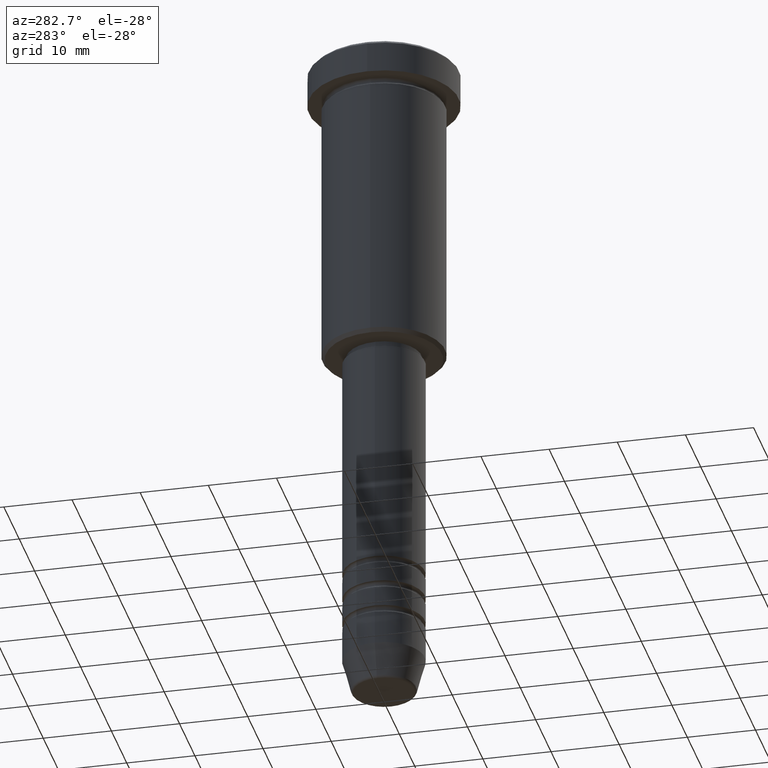
[diagram: clean part render]
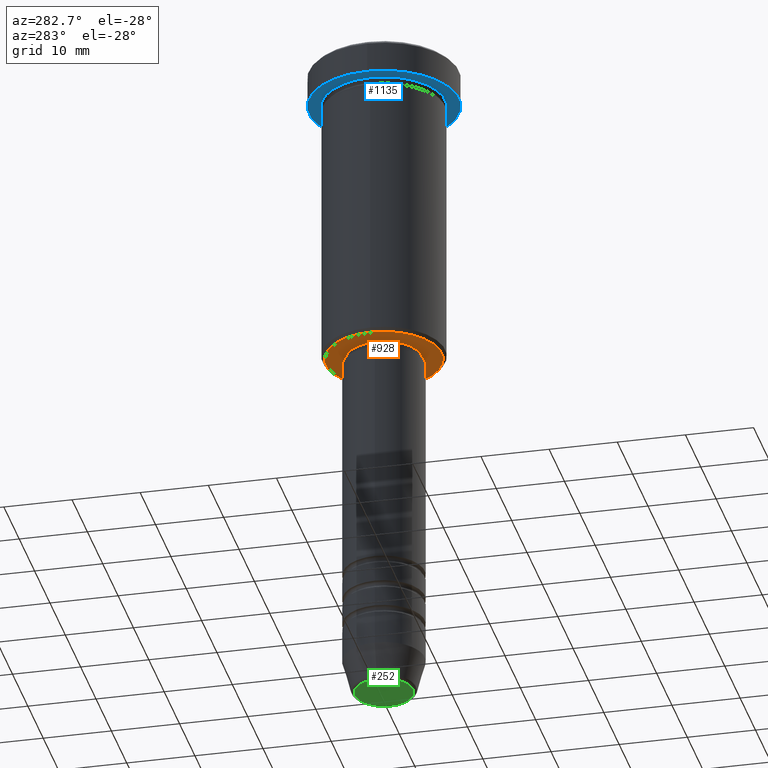
[diagram: same view with three faces highlighted in distinct colors, each labeled with its STEP entity id]
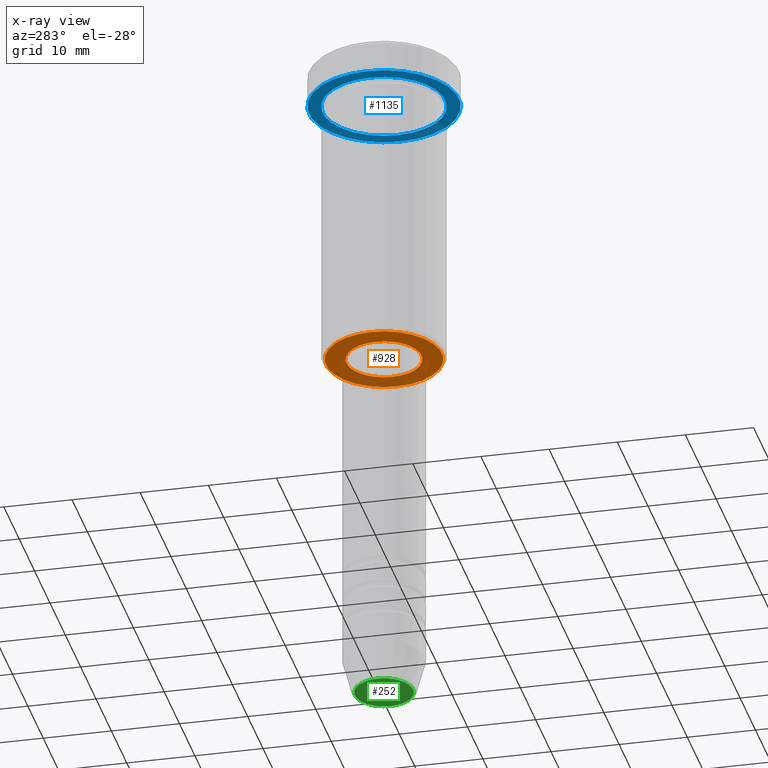
[diagram: x-ray of the same camera — body ghosted, the three highlighted faces saturated]
A machine part, auxiliary view with three faces highlighted in distinct colors.
The next image is the same camera in x-ray (body ghosted, the three faces saturated) — at least one of them is partly hidden behind the body in this view.
Their STEP definitions:

[orange] entity #928 — the highlighted planar face has unit normal (0, 0, -1).
#40 = EDGE_CURVE ( 'NONE', #103, #138, #1019, .T. ) ;
#58 = CIRCLE ( 'NONE', #481, 8.500000000000007105 ) ;
#100 = CARTESIAN_POINT ( 'NONE',  ( 5.499999999999999112, 0.000000000000000000, -46.00000000000000000 ) ) ;
#103 = VERTEX_POINT ( 'NONE', #989 ) ;
#136 = DIRECTION ( 'NONE',  ( 1.000000000000000000, 0.000000000000000000, 0.000000000000000000 ) ) ;
#137 = AXIS2_PLACEMENT_3D ( 'NONE', #341, #971, #878 ) ;
#138 = VERTEX_POINT ( 'NONE', #277 ) ;
#232 = DIRECTION ( 'NONE',  ( 1.000000000000000000, 0.000000000000000000, 0.000000000000000000 ) ) ;
#242 = DIRECTION ( 'NONE',  ( -0.000000000000000000, -0.000000000000000000, 1.000000000000000000 ) ) ;
#277 = CARTESIAN_POINT ( 'NONE',  ( 8.500000000000007105, 0.000000000000000000, -46.00000000000000000 ) ) ;
#279 = ORIENTED_EDGE ( 'NONE', *, *, #862, .T. ) ;
#312 = DIRECTION ( 'NONE',  ( 0.000000000000000000, 0.000000000000000000, -1.000000000000000000 ) ) ;
#341 = CARTESIAN_POINT ( 'NONE',  ( 0.000000000000000000, 0.000000000000000000, -46.00000000000000000 ) ) ;
#357 = FACE_OUTER_BOUND ( 'NONE', #905, .T. ) ;
#384 = VERTEX_POINT ( 'NONE', #100 ) ;
#413 = ORIENTED_EDGE ( 'NONE', *, *, #1106, .T. ) ;
#455 = DIRECTION ( 'NONE',  ( -1.000000000000000000, 0.000000000000000000, -0.000000000000000000 ) ) ;
#459 = AXIS2_PLACEMENT_3D ( 'NONE', #1058, #519, #232 ) ;
#465 = DIRECTION ( 'NONE',  ( 0.000000000000000000, 0.000000000000000000, -1.000000000000000000 ) ) ;
#481 = AXIS2_PLACEMENT_3D ( 'NONE', #487, #312, #575 ) ;
#487 = CARTESIAN_POINT ( 'NONE',  ( 0.000000000000000000, 0.000000000000000000, -46.00000000000000000 ) ) ;
#519 = DIRECTION ( 'NONE',  ( -0.000000000000000000, -0.000000000000000000, 1.000000000000000000 ) ) ;
#531 = CARTESIAN_POINT ( 'NONE',  ( 0.000000000000000000, 9.000000000000000000, -46.00000000000000000 ) ) ;
#575 = DIRECTION ( 'NONE',  ( -1.000000000000000000, 0.000000000000000000, 0.000000000000000000 ) ) ;
#688 = VERTEX_POINT ( 'NONE', #1123 ) ;
#811 = AXIS2_PLACEMENT_3D ( 'NONE', #531, #465, #455 ) ;
#828 = EDGE_CURVE ( 'NONE', #384, #688, #1139, .T. ) ;
#862 = EDGE_CURVE ( 'NONE', #688, #384, #911, .T. ) ;
#869 = AXIS2_PLACEMENT_3D ( 'NONE', #1062, #242, #136 ) ;
#878 = DIRECTION ( 'NONE',  ( -1.000000000000000000, 0.000000000000000000, 0.000000000000000000 ) ) ;
#892 = PLANE ( 'NONE',  #811 ) ;
#898 = FACE_BOUND ( 'NONE', #1063, .T. ) ;
#905 = EDGE_LOOP ( 'NONE', ( #413, #1082 ) ) ;
#911 = CIRCLE ( 'NONE', #869, 5.499999999999999112 ) ;
#928 = ADVANCED_FACE ( 'NONE', ( #357, #898 ), #892, .T. ) ;
#971 = DIRECTION ( 'NONE',  ( 0.000000000000000000, 0.000000000000000000, -1.000000000000000000 ) ) ;
#989 = CARTESIAN_POINT ( 'NONE',  ( -8.500000000000007105, 1.071565949253934321E-15, -46.00000000000000000 ) ) ;
#997 = ORIENTED_EDGE ( 'NONE', *, *, #828, .T. ) ;
#1019 = CIRCLE ( 'NONE', #137, 8.500000000000007105 ) ;
#1058 = CARTESIAN_POINT ( 'NONE',  ( 0.000000000000000000, 0.000000000000000000, -46.00000000000000000 ) ) ;
#1062 = CARTESIAN_POINT ( 'NONE',  ( 0.000000000000000000, 0.000000000000000000, -46.00000000000000000 ) ) ;
#1063 = EDGE_LOOP ( 'NONE', ( #997, #279 ) ) ;
#1082 = ORIENTED_EDGE ( 'NONE', *, *, #40, .T. ) ;
#1106 = EDGE_CURVE ( 'NONE', #138, #103, #58, .T. ) ;
#1123 = CARTESIAN_POINT ( 'NONE',  ( -5.499999999999999112, 6.735557395310441037E-16, -46.00000000000000000 ) ) ;
#1139 = CIRCLE ( 'NONE', #459, 5.499999999999999112 ) ;

[blue] entity #1135 — the highlighted planar face has unit normal (0, 0, -1).
#67 = CARTESIAN_POINT ( 'NONE',  ( -9.000000000000000000, 0.000000000000000000, -4.999999999999999112 ) ) ;
#74 = VERTEX_POINT ( 'NONE', #67 ) ;
#110 = AXIS2_PLACEMENT_3D ( 'NONE', #582, #314, #767 ) ;
#153 = DIRECTION ( 'NONE',  ( -0.000000000000000000, -0.000000000000000000, 1.000000000000000000 ) ) ;
#154 = VERTEX_POINT ( 'NONE', #191 ) ;
#191 = CARTESIAN_POINT ( 'NONE',  ( -11.00000000000000000, 1.347111479062088602E-15, -5.000000000000000000 ) ) ;
#204 = CARTESIAN_POINT ( 'NONE',  ( 0.000000000000000000, 11.00000000000000000, -5.000000000000000000 ) ) ;
#218 = PLANE ( 'NONE',  #951 ) ;
#231 = EDGE_LOOP ( 'NONE', ( #855, #578 ) ) ;
#285 = ORIENTED_EDGE ( 'NONE', *, *, #625, .T. ) ;
#314 = DIRECTION ( 'NONE',  ( -0.000000000000000000, -0.000000000000000000, 1.000000000000000000 ) ) ;
#338 = DIRECTION ( 'NONE',  ( 1.000000000000000000, 0.000000000000000000, 0.000000000000000000 ) ) ;
#392 = CIRCLE ( 'NONE', #1143, 11.00000000000000000 ) ;
#397 = DIRECTION ( 'NONE',  ( 0.000000000000000000, 0.000000000000000000, -1.000000000000000000 ) ) ;
#449 = EDGE_CURVE ( 'NONE', #1043, #154, #392, .T. ) ;
#479 = AXIS2_PLACEMENT_3D ( 'NONE', #771, #153, #605 ) ;
#511 = CIRCLE ( 'NONE', #1179, 9.000000000000000000 ) ;
#578 = ORIENTED_EDGE ( 'NONE', *, *, #783, .F. ) ;
#582 = CARTESIAN_POINT ( 'NONE',  ( 0.000000000000000000, 0.000000000000000000, -5.000000000000000000 ) ) ;
#605 = DIRECTION ( 'NONE',  ( 1.000000000000000000, 0.000000000000000000, 0.000000000000000000 ) ) ;
#625 = EDGE_CURVE ( 'NONE', #74, #899, #511, .T. ) ;
#693 = EDGE_LOOP ( 'NONE', ( #285, #770 ) ) ;
#699 = DIRECTION ( 'NONE',  ( -0.000000000000000000, -0.000000000000000000, 1.000000000000000000 ) ) ;
#715 = EDGE_CURVE ( 'NONE', #899, #74, #909, .T. ) ;
#750 = DIRECTION ( 'NONE',  ( -1.000000000000000000, 0.000000000000000000, 0.000000000000000000 ) ) ;
#767 = DIRECTION ( 'NONE',  ( -1.000000000000000000, 0.000000000000000000, 0.000000000000000000 ) ) ;
#770 = ORIENTED_EDGE ( 'NONE', *, *, #715, .T. ) ;
#771 = CARTESIAN_POINT ( 'NONE',  ( 0.000000000000000000, 0.000000000000000000, -5.000000000000000000 ) ) ;
#783 = EDGE_CURVE ( 'NONE', #154, #1043, #987, .T. ) ;
#785 = CARTESIAN_POINT ( 'NONE',  ( 0.000000000000000000, 0.000000000000000000, -5.000000000000000000 ) ) ;
#822 = DIRECTION ( 'NONE',  ( -0.000000000000000000, -0.000000000000000000, 1.000000000000000000 ) ) ;
#841 = DIRECTION ( 'NONE',  ( -1.000000000000000000, 0.000000000000000000, -0.000000000000000000 ) ) ;
#855 = ORIENTED_EDGE ( 'NONE', *, *, #449, .F. ) ;
#899 = VERTEX_POINT ( 'NONE', #1004 ) ;
#909 = CIRCLE ( 'NONE', #110, 9.000000000000000000 ) ;
#947 = CARTESIAN_POINT ( 'NONE',  ( 0.000000000000000000, 0.000000000000000000, -5.000000000000000000 ) ) ;
#951 = AXIS2_PLACEMENT_3D ( 'NONE', #204, #397, #841 ) ;
#987 = CIRCLE ( 'NONE', #479, 11.00000000000000000 ) ;
#1004 = CARTESIAN_POINT ( 'NONE',  ( 9.000000000000000000, 1.102182119232617714E-15, -4.999999999999999112 ) ) ;
#1038 = FACE_OUTER_BOUND ( 'NONE', #231, .T. ) ;
#1043 = VERTEX_POINT ( 'NONE', #1121 ) ;
#1114 = FACE_BOUND ( 'NONE', #693, .T. ) ;
#1121 = CARTESIAN_POINT ( 'NONE',  ( 11.00000000000000000, 0.000000000000000000, -5.000000000000000000 ) ) ;
#1135 = ADVANCED_FACE ( 'NONE', ( #1114, #1038 ), #218, .T. ) ;
#1143 = AXIS2_PLACEMENT_3D ( 'NONE', #785, #699, #338 ) ;
#1179 = AXIS2_PLACEMENT_3D ( 'NONE', #947, #822, #750 ) ;

[green] entity #252 — the highlighted planar face has unit normal (0, -0, 1).
#27 = EDGE_CURVE ( 'NONE', #1177, #852, #468, .T. ) ;
#135 = EDGE_LOOP ( 'NONE', ( #601, #265 ) ) ;
#210 = CIRCLE ( 'NONE', #387, 4.276590543854901227 ) ;
#252 = ADVANCED_FACE ( 'NONE', ( #1113 ), #569, .F. ) ;
#265 = ORIENTED_EDGE ( 'NONE', *, *, #27, .T. ) ;
#360 = DIRECTION ( 'NONE',  ( 1.000000000000000000, 0.000000000000000000, 0.000000000000000000 ) ) ;
#381 = CARTESIAN_POINT ( 'NONE',  ( 0.000000000000000000, 0.000000000000000000, -100.0000000000000000 ) ) ;
#387 = AXIS2_PLACEMENT_3D ( 'NONE', #984, #446, #640 ) ;
#446 = DIRECTION ( 'NONE',  ( 0.000000000000000000, 0.000000000000000000, -1.000000000000000000 ) ) ;
#468 = CIRCLE ( 'NONE', #857, 4.276590543854901227 ) ;
#552 = DIRECTION ( 'NONE',  ( 1.000000000000000000, 0.000000000000000000, 0.000000000000000000 ) ) ;
#569 = PLANE ( 'NONE',  #1033 ) ;
#601 = ORIENTED_EDGE ( 'NONE', *, *, #887, .T. ) ;
#640 = DIRECTION ( 'NONE',  ( 1.000000000000000000, 0.000000000000000000, 0.000000000000000000 ) ) ;
#788 = CARTESIAN_POINT ( 'NONE',  ( 4.276590543854901227, 0.000000000000000000, -100.0000000000000000 ) ) ;
#824 = DIRECTION ( 'NONE',  ( 0.000000000000000000, -0.000000000000000000, 1.000000000000000000 ) ) ;
#852 = VERTEX_POINT ( 'NONE', #788 ) ;
#857 = AXIS2_PLACEMENT_3D ( 'NONE', #1155, #1181, #360 ) ;
#887 = EDGE_CURVE ( 'NONE', #852, #1177, #210, .T. ) ;
#970 = CARTESIAN_POINT ( 'NONE',  ( -4.276590543854901227, 5.533042413640410490E-16, -100.0000000000000000 ) ) ;
#984 = CARTESIAN_POINT ( 'NONE',  ( 0.000000000000000000, 0.000000000000000000, -100.0000000000000000 ) ) ;
#1033 = AXIS2_PLACEMENT_3D ( 'NONE', #381, #824, #552 ) ;
#1113 = FACE_OUTER_BOUND ( 'NONE', #135, .T. ) ;
#1155 = CARTESIAN_POINT ( 'NONE',  ( 0.000000000000000000, 0.000000000000000000, -100.0000000000000000 ) ) ;
#1177 = VERTEX_POINT ( 'NONE', #970 ) ;
#1181 = DIRECTION ( 'NONE',  ( 0.000000000000000000, 0.000000000000000000, -1.000000000000000000 ) ) ;